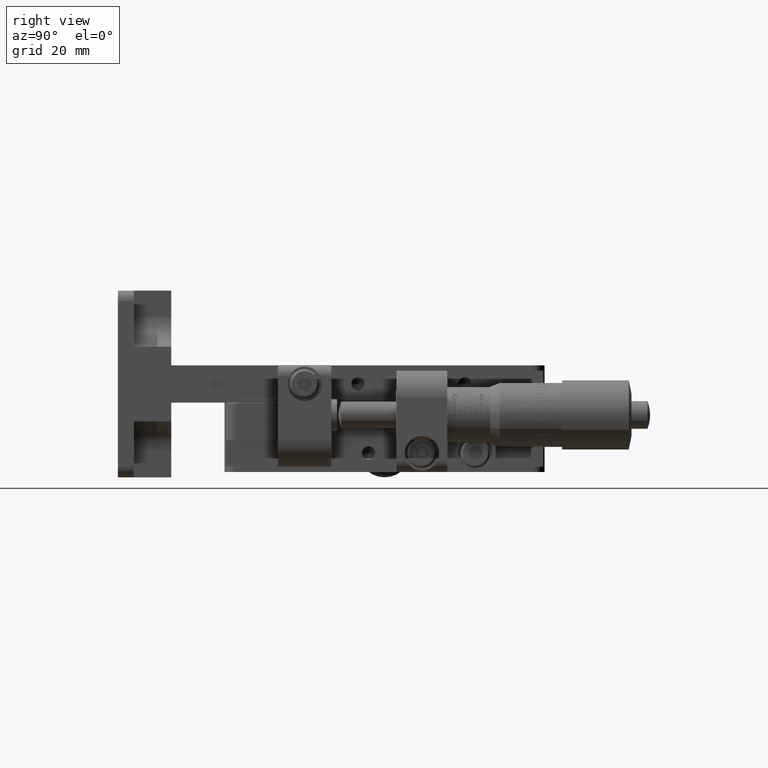
[diagram: clean part render]
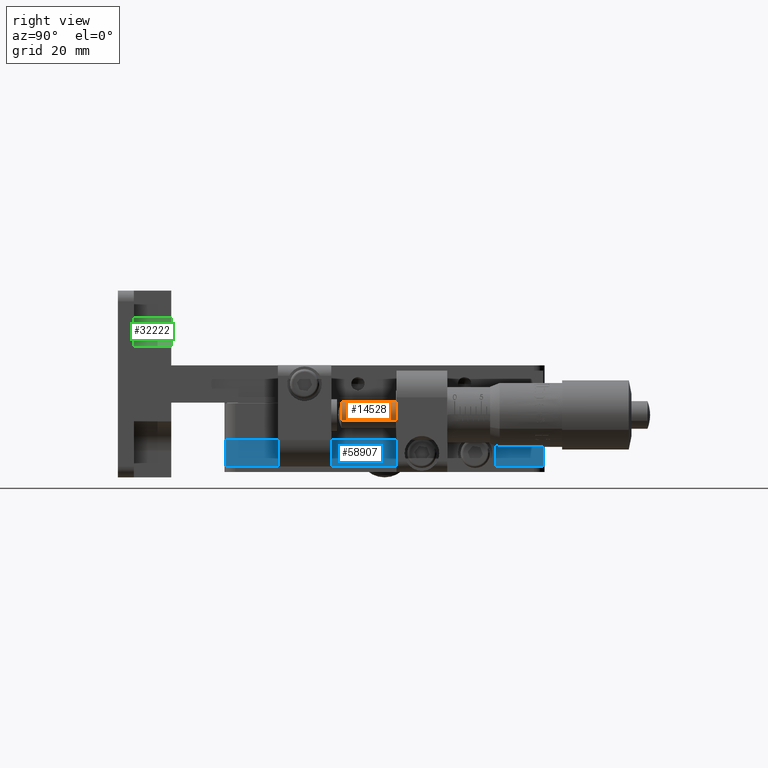
[diagram: same view with three faces highlighted in distinct colors, each labeled with its STEP entity id]
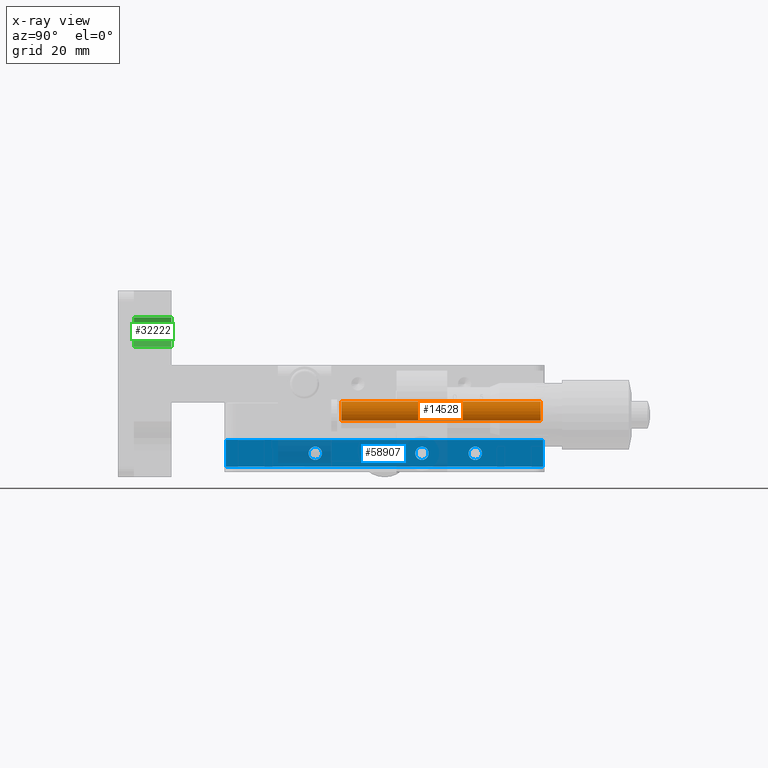
[diagram: x-ray of the same camera — body ghosted, the three highlighted faces saturated]
A machine part, right view with three faces highlighted in distinct colors.
The next image is the same camera in x-ray (body ghosted, the three faces saturated) — at least one of them is partly hidden behind the body in this view.
Their STEP definitions:

[orange] entity #14528 — the highlighted cylindrical surface (edge-blend (fillet) strip) has radius 2.5 mm, axis along (-0, 1, -0).
#184 = LINE ( 'NONE', #10403, #41986 ) ;
#1966 = CARTESIAN_POINT ( 'NONE',  ( 42.25542908261424900, 31.89000660395621600, -6.878443161886056400 ) ) ;
#2628 = VERTEX_POINT ( 'NONE', #30212 ) ;
#5432 = EDGE_CURVE ( 'NONE', #42378, #6967, #184, .T. ) ;
#6967 = VERTEX_POINT ( 'NONE', #29774 ) ;
#9504 = CIRCLE ( 'NONE', #38083, 2.500000000000004400 ) ;
#10403 = CARTESIAN_POINT ( 'NONE',  ( 42.25542908261424900, 102.3310296731638400, -6.878443161886052000 ) ) ;
#10442 = EDGE_CURVE ( 'NONE', #6967, #2628, #38309, .T. ) ;
#10523 = CARTESIAN_POINT ( 'NONE',  ( 40.00000000000005700, 69.29000660395618600, -5.800000000055935500 ) ) ;
#11455 = EDGE_CURVE ( 'NONE', #54165, #2628, #33080, .T. ) ;
#12692 = EDGE_CURVE ( 'NONE', #54165, #42378, #9504, .T. ) ;
#13437 = AXIS2_PLACEMENT_3D ( 'NONE', #38979, #25316, #29778 ) ;
#14528 = ADVANCED_FACE ( 'NONE', ( #53990 ), #21147, .T. ) ;
#21147 = CYLINDRICAL_SURFACE ( 'NONE', #13437, 2.500000000000004400 ) ;
#21860 = ORIENTED_EDGE ( 'NONE', *, *, #11455, .F. ) ;
#22021 = AXIS2_PLACEMENT_3D ( 'NONE', #10523, #24697, #57129 ) ;
#23620 = VECTOR ( 'NONE', #46132, 1000.000000000000000 ) ;
#24697 = DIRECTION ( 'NONE',  ( 1.101876641632671100E-016, -1.000000000000000000, 2.975472225001914800E-018 ) ) ;
#25050 = ORIENTED_EDGE ( 'NONE', *, *, #12692, .T. ) ;
#25316 = DIRECTION ( 'NONE',  ( -1.101876641632671100E-016, 1.000000000000000000, -2.975472225001914800E-018 ) ) ;
#29774 = CARTESIAN_POINT ( 'NONE',  ( 42.25542908261424200, 69.29000660395618600, -6.878443161886045800 ) ) ;
#29778 = DIRECTION ( 'NONE',  ( -0.9021716330456852600, 0.0000000000000000000, 0.4313772647320224800 ) ) ;
#30212 = CARTESIAN_POINT ( 'NONE',  ( 37.74457091738581500, 69.29000660395618600, -4.721556838225936300 ) ) ;
#31970 = ORIENTED_EDGE ( 'NONE', *, *, #10442, .T. ) ;
#32816 = CARTESIAN_POINT ( 'NONE',  ( 37.74457091738581500, 102.3310296731638400, -4.721556838225935400 ) ) ;
#33080 = LINE ( 'NONE', #32816, #23620 ) ;
#36646 = DIRECTION ( 'NONE',  ( -0.9021716330456852600, 0.0000000000000000000, 0.4313772647320228100 ) ) ;
#38083 = AXIS2_PLACEMENT_3D ( 'NONE', #46070, #50343, #36646 ) ;
#38309 = CIRCLE ( 'NONE', #22021, 2.499999999999998200 ) ;
#38979 = CARTESIAN_POINT ( 'NONE',  ( 40.00000000000002800, 102.3310296731638400, -5.800000000055994100 ) ) ;
#41986 = VECTOR ( 'NONE', #48446, 1000.000000000000000 ) ;
#42378 = VERTEX_POINT ( 'NONE', #1966 ) ;
#45880 = ORIENTED_EDGE ( 'NONE', *, *, #5432, .T. ) ;
#46070 = CARTESIAN_POINT ( 'NONE',  ( 40.00000000000002800, 31.89000660395621600, -5.800000000055996800 ) ) ;
#46132 = DIRECTION ( 'NONE',  ( -1.101876641632671100E-016, 1.000000000000000000, -2.975472225001914800E-018 ) ) ;
#48446 = DIRECTION ( 'NONE',  ( -1.101876641632671100E-016, 1.000000000000000000, -2.975472225001914800E-018 ) ) ;
#50188 = EDGE_LOOP ( 'NONE', ( #25050, #45880, #31970, #21860 ) ) ;
#50343 = DIRECTION ( 'NONE',  ( -1.101876641632671100E-016, 1.000000000000000000, -2.975472225001914800E-018 ) ) ;
#51636 = CARTESIAN_POINT ( 'NONE',  ( 37.74457091738580100, 31.89000660395621600, -4.721556838225930100 ) ) ;
#53990 = FACE_OUTER_BOUND ( 'NONE', #50188, .T. ) ;
#54165 = VERTEX_POINT ( 'NONE', #51636 ) ;
#57129 = DIRECTION ( 'NONE',  ( 0.9021716330456848200, 0.0000000000000000000, -0.4313772647320232000 ) ) ;

[blue] entity #58907 — the highlighted planar face has unit normal (-1, 0, 0).
#398 = CARTESIAN_POINT ( 'NONE',  ( 28.99999999999989000, 25.75000000000000700, -13.00000000005647900 ) ) ;
#1893 = DIRECTION ( 'NONE',  ( 2.161212547776903800E-015, 7.786228510435219100E-015, 1.000000000000000000 ) ) ;
#2029 = AXIS2_PLACEMENT_3D ( 'NONE', #24992, #6122, #47643 ) ;
#2115 = DIRECTION ( 'NONE',  ( 1.000000000000000000, 1.288194811238798000E-015, -2.176517556210199200E-015 ) ) ;
#2536 = CARTESIAN_POINT ( 'NONE',  ( 28.99999999999995400, 69.99999999999998600, -15.50000000005612900 ) ) ;
#2827 = CIRCLE ( 'NONE', #32256, 1.250000000000001100 ) ;
#3166 = EDGE_CURVE ( 'NONE', #5172, #59048, #33082, .T. ) ;
#3345 = CARTESIAN_POINT ( 'NONE',  ( 28.99999999999989000, 28.25000000000000000, -13.00000000005646900 ) ) ;
#4356 = EDGE_CURVE ( 'NONE', #11768, #17262, #57372, .T. ) ;
#4635 = AXIS2_PLACEMENT_3D ( 'NONE', #17056, #40183, #36452 ) ;
#5172 = VERTEX_POINT ( 'NONE', #398 ) ;
#6122 = DIRECTION ( 'NONE',  ( 1.000000000000000000, 1.288194811238798000E-015, -2.176517556210199200E-015 ) ) ;
#6568 = EDGE_LOOP ( 'NONE', ( #26606, #10905 ) ) ;
#6999 = EDGE_CURVE ( 'NONE', #53246, #37871, #11062, .T. ) ;
#7797 = DIRECTION ( 'NONE',  ( 0.0000000000000000000, 1.000000000000000000, 6.938893903907222100E-015 ) ) ;
#8738 = AXIS2_PLACEMENT_3D ( 'NONE', #2536, #44318, #44536 ) ;
#9950 = ORIENTED_EDGE ( 'NONE', *, *, #3166, .F. ) ;
#10905 = ORIENTED_EDGE ( 'NONE', *, *, #41227, .F. ) ;
#11014 = EDGE_CURVE ( 'NONE', #37358, #13326, #49984, .T. ) ;
#11062 = LINE ( 'NONE', #20618, #55684 ) ;
#11768 = VERTEX_POINT ( 'NONE', #52598 ) ;
#12311 = DIRECTION ( 'NONE',  ( 1.000000000000000000, 1.288194811238798000E-015, -2.176517556210199200E-015 ) ) ;
#12743 = CARTESIAN_POINT ( 'NONE',  ( 28.99999999999996400, 70.00000000000009900, -10.50000000005615200 ) ) ;
#13326 = VERTEX_POINT ( 'NONE', #42704 ) ;
#13891 = EDGE_CURVE ( 'NONE', #49794, #46302, #2827, .T. ) ;
#14303 = CARTESIAN_POINT ( 'NONE',  ( 28.99999999999992500, 47.00000000000003600, -13.00000000005633500 ) ) ;
#14523 = EDGE_CURVE ( 'NONE', #59048, #5172, #36473, .T. ) ;
#14989 = VECTOR ( 'NONE', #28171, 1000.000000000000000 ) ;
#16400 = LINE ( 'NONE', #12743, #19336 ) ;
#16669 = VECTOR ( 'NONE', #59720, 1000.000000000000000 ) ;
#16672 = VERTEX_POINT ( 'NONE', #55963 ) ;
#16830 = CARTESIAN_POINT ( 'NONE',  ( 28.99999999999992500, 37.00000000000004300, -13.00000000005640500 ) ) ;
#17056 = CARTESIAN_POINT ( 'NONE',  ( 28.99999999999992500, 47.00000000000003600, -13.00000000005633500 ) ) ;
#17262 = VERTEX_POINT ( 'NONE', #40606 ) ;
#18118 = CIRCLE ( 'NONE', #25335, 1.250000000000001100 ) ;
#18569 = DIRECTION ( 'NONE',  ( 1.000000000000000000, 1.288194811238798000E-015, -2.176517556210199200E-015 ) ) ;
#18826 = DIRECTION ( 'NONE',  ( 0.0000000000000000000, 1.000000000000000000, 6.938893903907222100E-015 ) ) ;
#19153 = EDGE_LOOP ( 'NONE', ( #31085, #43314, #33465, #50307 ) ) ;
#19336 = VECTOR ( 'NONE', #55451, 1000.000000000000000 ) ;
#19429 = FACE_BOUND ( 'NONE', #54717, .T. ) ;
#20618 = CARTESIAN_POINT ( 'NONE',  ( 28.99999999999997900, 69.73205080756908100, -3.600000000056134700 ) ) ;
#22334 = CARTESIAN_POINT ( 'NONE',  ( 28.99999999999992500, 37.00000000000004300, -13.00000000005640500 ) ) ;
#22822 = AXIS2_PLACEMENT_3D ( 'NONE', #16830, #12311, #7797 ) ;
#23446 = ORIENTED_EDGE ( 'NONE', *, *, #11014, .F. ) ;
#24992 = CARTESIAN_POINT ( 'NONE',  ( 28.99999999999989000, 27.00000000000000400, -13.00000000005647700 ) ) ;
#25335 = AXIS2_PLACEMENT_3D ( 'NONE', #36537, #50225, #50433 ) ;
#26313 = AXIS2_PLACEMENT_3D ( 'NONE', #22334, #37618, #18826 ) ;
#26606 = ORIENTED_EDGE ( 'NONE', *, *, #54153, .F. ) ;
#28171 = DIRECTION ( 'NONE',  ( -2.161212547776903800E-015, -7.786228510435219100E-015, -1.000000000000000000 ) ) ;
#28779 = CIRCLE ( 'NONE', #4635, 1.250000000000001100 ) ;
#31085 = ORIENTED_EDGE ( 'NONE', *, *, #44344, .T. ) ;
#31263 = LINE ( 'NONE', #49951, #16669 ) ;
#31714 = EDGE_CURVE ( 'NONE', #46302, #49794, #28779, .T. ) ;
#31854 = FACE_BOUND ( 'NONE', #37954, .T. ) ;
#32256 = AXIS2_PLACEMENT_3D ( 'NONE', #14303, #56404, #51701 ) ;
#32790 = EDGE_CURVE ( 'NONE', #13326, #37358, #41880, .T. ) ;
#33082 = CIRCLE ( 'NONE', #2029, 1.249999999999997600 ) ;
#33465 = ORIENTED_EDGE ( 'NONE', *, *, #50848, .F. ) ;
#34026 = FACE_BOUND ( 'NONE', #6568, .T. ) ;
#34686 = CARTESIAN_POINT ( 'NONE',  ( 28.99999999999989000, 27.00000000000000400, -13.00000000005647700 ) ) ;
#34990 = CARTESIAN_POINT ( 'NONE',  ( 28.99999999999996100, 55.75000000000003600, -13.00000000005624800 ) ) ;
#35507 = PLANE ( 'NONE',  #8738 ) ;
#36452 = DIRECTION ( 'NONE',  ( 0.0000000000000000000, 1.000000000000000000, 6.938893903907222100E-015 ) ) ;
#36473 = CIRCLE ( 'NONE', #52178, 1.249999999999997600 ) ;
#36537 = CARTESIAN_POINT ( 'NONE',  ( 28.99999999999996100, 57.00000000000003600, -13.00000000005624700 ) ) ;
#37358 = VERTEX_POINT ( 'NONE', #42802 ) ;
#37618 = DIRECTION ( 'NONE',  ( 1.000000000000000000, 1.288194811238798000E-015, -2.176517556210199200E-015 ) ) ;
#37638 = CARTESIAN_POINT ( 'NONE',  ( 28.99999999999995400, 69.73205080756895300, -15.50000000005612900 ) ) ;
#37772 = DIRECTION ( 'NONE',  ( 0.0000000000000000000, 1.000000000000000000, 6.938893903907222100E-015 ) ) ;
#37871 = VERTEX_POINT ( 'NONE', #56788 ) ;
#37954 = EDGE_LOOP ( 'NONE', ( #51756, #23446 ) ) ;
#38505 = ORIENTED_EDGE ( 'NONE', *, *, #31714, .F. ) ;
#39905 = FACE_BOUND ( 'NONE', #40687, .T. ) ;
#40074 = VERTEX_POINT ( 'NONE', #34990 ) ;
#40183 = DIRECTION ( 'NONE',  ( 1.000000000000000000, 1.288194811238798000E-015, -2.176517556210199200E-015 ) ) ;
#40606 = CARTESIAN_POINT ( 'NONE',  ( 28.99999999999992500, 10.26794919243106300, -15.50000000005657200 ) ) ;
#40687 = EDGE_LOOP ( 'NONE', ( #38505, #58331 ) ) ;
#41227 = EDGE_CURVE ( 'NONE', #40074, #16672, #18118, .T. ) ;
#41880 = CIRCLE ( 'NONE', #22822, 1.250000000000001100 ) ;
#42704 = CARTESIAN_POINT ( 'NONE',  ( 28.99999999999992500, 38.25000000000004300, -13.00000000005639600 ) ) ;
#42802 = CARTESIAN_POINT ( 'NONE',  ( 28.99999999999992500, 35.75000000000003600, -13.00000000005640600 ) ) ;
#42829 = FACE_OUTER_BOUND ( 'NONE', #19153, .T. ) ;
#43314 = ORIENTED_EDGE ( 'NONE', *, *, #4356, .T. ) ;
#43907 = CARTESIAN_POINT ( 'NONE',  ( 28.99999999999995000, 10.26794919243116600, -3.600000000056558000 ) ) ;
#44308 = DIRECTION ( 'NONE',  ( 0.0000000000000000000, 1.000000000000000000, 6.938893903907241800E-015 ) ) ;
#44318 = DIRECTION ( 'NONE',  ( -1.000000000000000000, 1.043273540474328300E-015, 2.176517556210216100E-015 ) ) ;
#44344 = EDGE_CURVE ( 'NONE', #37871, #11768, #16400, .T. ) ;
#44536 = DIRECTION ( 'NONE',  ( -1.043273540474344300E-015, -1.000000000000000000, -7.323635583508068400E-015 ) ) ;
#46302 = VERTEX_POINT ( 'NONE', #49293 ) ;
#47643 = DIRECTION ( 'NONE',  ( 0.0000000000000000000, 1.000000000000000000, 6.938893903907241800E-015 ) ) ;
#48501 = CARTESIAN_POINT ( 'NONE',  ( 28.99999999999992500, 45.75000000000003600, -13.00000000005633700 ) ) ;
#49293 = CARTESIAN_POINT ( 'NONE',  ( 28.99999999999992500, 48.25000000000003600, -13.00000000005632600 ) ) ;
#49794 = VERTEX_POINT ( 'NONE', #48501 ) ;
#49951 = CARTESIAN_POINT ( 'NONE',  ( 28.99999999999995400, 69.99999999999998600, -15.50000000005612900 ) ) ;
#49984 = CIRCLE ( 'NONE', #26313, 1.250000000000001100 ) ;
#50225 = DIRECTION ( 'NONE',  ( 1.000000000000000000, 1.288194811238798000E-015, -2.176517556210199200E-015 ) ) ;
#50307 = ORIENTED_EDGE ( 'NONE', *, *, #6999, .T. ) ;
#50433 = DIRECTION ( 'NONE',  ( 0.0000000000000000000, 1.000000000000000000, 6.938893903907222100E-015 ) ) ;
#50788 = CIRCLE ( 'NONE', #59006, 1.250000000000001100 ) ;
#50848 = EDGE_CURVE ( 'NONE', #53246, #17262, #31263, .T. ) ;
#51701 = DIRECTION ( 'NONE',  ( 0.0000000000000000000, 1.000000000000000000, 6.938893903907222100E-015 ) ) ;
#51756 = ORIENTED_EDGE ( 'NONE', *, *, #32790, .F. ) ;
#52178 = AXIS2_PLACEMENT_3D ( 'NONE', #34686, #2115, #44308 ) ;
#52598 = CARTESIAN_POINT ( 'NONE',  ( 28.99999999999993600, 10.26794919243109700, -10.50000000005657500 ) ) ;
#53246 = VERTEX_POINT ( 'NONE', #37638 ) ;
#54153 = EDGE_CURVE ( 'NONE', #16672, #40074, #50788, .T. ) ;
#54717 = EDGE_LOOP ( 'NONE', ( #56910, #9950 ) ) ;
#55451 = DIRECTION ( 'NONE',  ( -1.043273540474344300E-015, -1.000000000000000000, -7.323635583508068400E-015 ) ) ;
#55684 = VECTOR ( 'NONE', #1893, 1000.000000000000000 ) ;
#55963 = CARTESIAN_POINT ( 'NONE',  ( 28.99999999999996100, 58.25000000000003600, -13.00000000005623800 ) ) ;
#56348 = CARTESIAN_POINT ( 'NONE',  ( 28.99999999999996100, 57.00000000000003600, -13.00000000005624700 ) ) ;
#56404 = DIRECTION ( 'NONE',  ( 1.000000000000000000, 1.288194811238798000E-015, -2.176517556210199200E-015 ) ) ;
#56788 = CARTESIAN_POINT ( 'NONE',  ( 28.99999999999996400, 69.73205080756906700, -10.50000000005615200 ) ) ;
#56910 = ORIENTED_EDGE ( 'NONE', *, *, #14523, .F. ) ;
#57372 = LINE ( 'NONE', #43907, #14989 ) ;
#58331 = ORIENTED_EDGE ( 'NONE', *, *, #13891, .F. ) ;
#58907 = ADVANCED_FACE ( 'NONE', ( #34026, #39905, #31854, #19429, #42829 ), #35507, .F. ) ;
#59006 = AXIS2_PLACEMENT_3D ( 'NONE', #56348, #18569, #37772 ) ;
#59048 = VERTEX_POINT ( 'NONE', #3345 ) ;
#59720 = DIRECTION ( 'NONE',  ( -1.043273540474344300E-015, -1.000000000000000000, -7.323635583508068400E-015 ) ) ;

[green] entity #32222 — the highlighted cylindrical surface (edge-blend (fillet) strip) has radius 5.5 mm, axis along (-0, 1, 0).
#2973 = CARTESIAN_POINT ( 'NONE',  ( 24.99999999999995000, -6.999999999999903200, 12.49999999999994700 ) ) ;
#4290 = VERTEX_POINT ( 'NONE', #5919 ) ;
#4683 = VECTOR ( 'NONE', #47310, 1000.000000000000000 ) ;
#5742 = AXIS2_PLACEMENT_3D ( 'NONE', #42483, #56528, #18970 ) ;
#5919 = CARTESIAN_POINT ( 'NONE',  ( 25.00000000000002100, 4.989577446552288600E-014, 6.999999999999963600 ) ) ;
#11121 = DIRECTION ( 'NONE',  ( -7.494005416227522700E-016, 1.000000000000000000, 7.407882006856690300E-015 ) ) ;
#11667 = AXIS2_PLACEMENT_3D ( 'NONE', #2973, #26563, #16326 ) ;
#11732 = CARTESIAN_POINT ( 'NONE',  ( 25.00000000000002100, -6.999999999999956500, 6.999999999999902300 ) ) ;
#16326 = DIRECTION ( 'NONE',  ( -6.308085367188382400E-016, 9.777532319141992000E-015, 1.000000000000000000 ) ) ;
#18970 = DIRECTION ( 'NONE',  ( -6.308085367188385300E-016, 9.804398286584538400E-015, 1.000000000000000000 ) ) ;
#22586 = CARTESIAN_POINT ( 'NONE',  ( 19.49999999999994300, -6.999999999999903200, 12.49999999999991800 ) ) ;
#22782 = LINE ( 'NONE', #11732, #54921 ) ;
#26332 = DIRECTION ( 'NONE',  ( -7.494005416227522700E-016, 1.000000000000000000, 7.407882006856690300E-015 ) ) ;
#26563 = DIRECTION ( 'NONE',  ( -7.494005416227522700E-016, 1.000000000000000000, 7.407882006856690300E-015 ) ) ;
#28716 = EDGE_CURVE ( 'NONE', #4290, #49883, #42013, .T. ) ;
#28963 = CIRCLE ( 'NONE', #11667, 5.500000000000006200 ) ;
#29603 = LINE ( 'NONE', #51784, #4683 ) ;
#30188 = EDGE_CURVE ( 'NONE', #50910, #47161, #28963, .T. ) ;
#31409 = CARTESIAN_POINT ( 'NONE',  ( 24.99999999999995000, -6.999999999999903200, 12.49999999999994700 ) ) ;
#32222 = ADVANCED_FACE ( 'NONE', ( #48520 ), #41944, .F. ) ;
#36259 = CARTESIAN_POINT ( 'NONE',  ( 25.00000000000002100, -6.999999999999956500, 6.999999999999902300 ) ) ;
#38632 = EDGE_CURVE ( 'NONE', #50910, #4290, #22782, .T. ) ;
#40873 = ORIENTED_EDGE ( 'NONE', *, *, #43080, .F. ) ;
#41944 = CYLINDRICAL_SURFACE ( 'NONE', #50522, 5.500000000000005300 ) ;
#42013 = CIRCLE ( 'NONE', #5742, 5.500000000000003600 ) ;
#42483 = CARTESIAN_POINT ( 'NONE',  ( 24.99999999999995000, 1.038199650417381200E-013, 12.49999999999998600 ) ) ;
#43080 = EDGE_CURVE ( 'NONE', #47161, #49883, #29603, .T. ) ;
#44424 = EDGE_LOOP ( 'NONE', ( #49180, #40873, #59489, #57954 ) ) ;
#45240 = CARTESIAN_POINT ( 'NONE',  ( 19.49999999999994300, 1.079416680206629300E-013, 12.49999999999995700 ) ) ;
#47161 = VERTEX_POINT ( 'NONE', #22586 ) ;
#47310 = DIRECTION ( 'NONE',  ( -7.494005416227522700E-016, 1.000000000000000000, 7.407882006856690300E-015 ) ) ;
#48520 = FACE_OUTER_BOUND ( 'NONE', #44424, .T. ) ;
#49180 = ORIENTED_EDGE ( 'NONE', *, *, #28716, .T. ) ;
#49883 = VERTEX_POINT ( 'NONE', #45240 ) ;
#50522 = AXIS2_PLACEMENT_3D ( 'NONE', #31409, #26332, #54458 ) ;
#50910 = VERTEX_POINT ( 'NONE', #36259 ) ;
#51784 = CARTESIAN_POINT ( 'NONE',  ( 19.49999999999994300, -6.999999999999903200, 12.49999999999991800 ) ) ;
#54458 = DIRECTION ( 'NONE',  ( 6.308085367188383300E-016, -9.777532319141993600E-015, -1.000000000000000000 ) ) ;
#54921 = VECTOR ( 'NONE', #11121, 1000.000000000000000 ) ;
#56528 = DIRECTION ( 'NONE',  ( -7.494005416227522700E-016, 1.000000000000000000, 7.407882006856690300E-015 ) ) ;
#57954 = ORIENTED_EDGE ( 'NONE', *, *, #38632, .T. ) ;
#59489 = ORIENTED_EDGE ( 'NONE', *, *, #30188, .F. ) ;